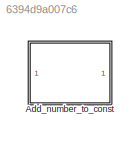
MODEL slx_6394d9a007c6
KIND library
CONFIG AbsTol = auto
CONFIG EnableMultiTasking = off
CONFIG FixedStep = auto
CONFIG MaxStep = auto
CONFIG MinStep = auto
CONFIG RelTol = 1e-3
CONFIG SampleTimeConstraint = Unconstrained
CONFIG SolverName = VariableStepAuto
CONFIG StartTime = 0.0
CONFIG StopTime = 10.0
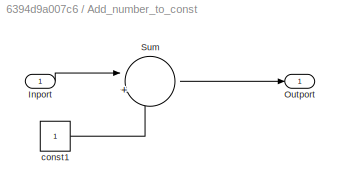
BLOCK [SubSystem] Add_number_to_const
BLOCK [Inport] Add_number_to_const/Inport
BLOCK [Outport] Add_number_to_const/Outport
BLOCK [Sum] Add_number_to_const/Sum
  Inputs = |++
BLOCK [Constant] Add_number_to_const/const1
LINE Add_number_to_const/Inport:1 -> Add_number_to_const/Sum:1
LINE Add_number_to_const/Sum:1 -> Add_number_to_const/Outport:1
LINE Add_number_to_const/const1:1 -> Add_number_to_const/Sum:2
